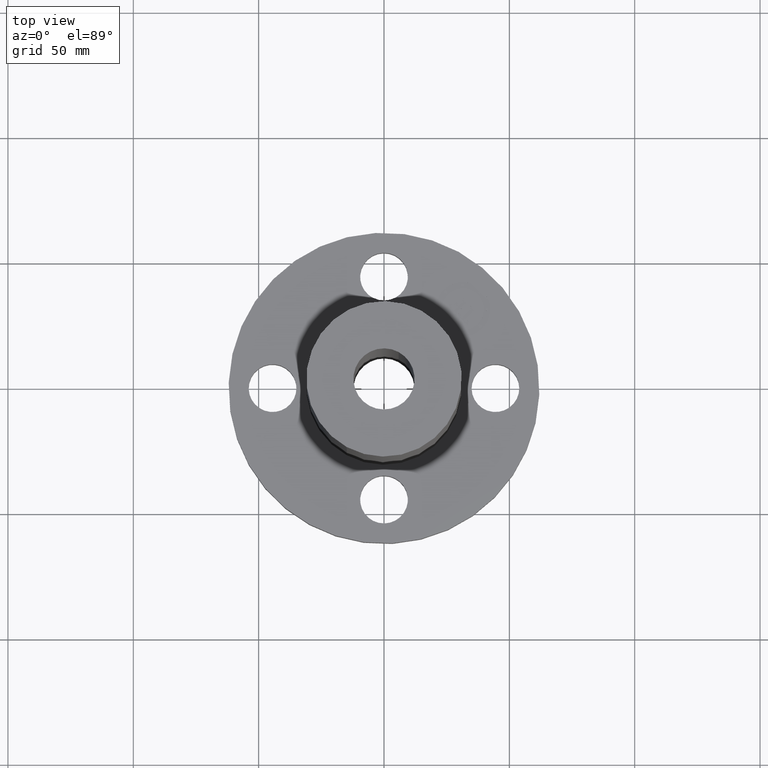
[diagram: clean part render]
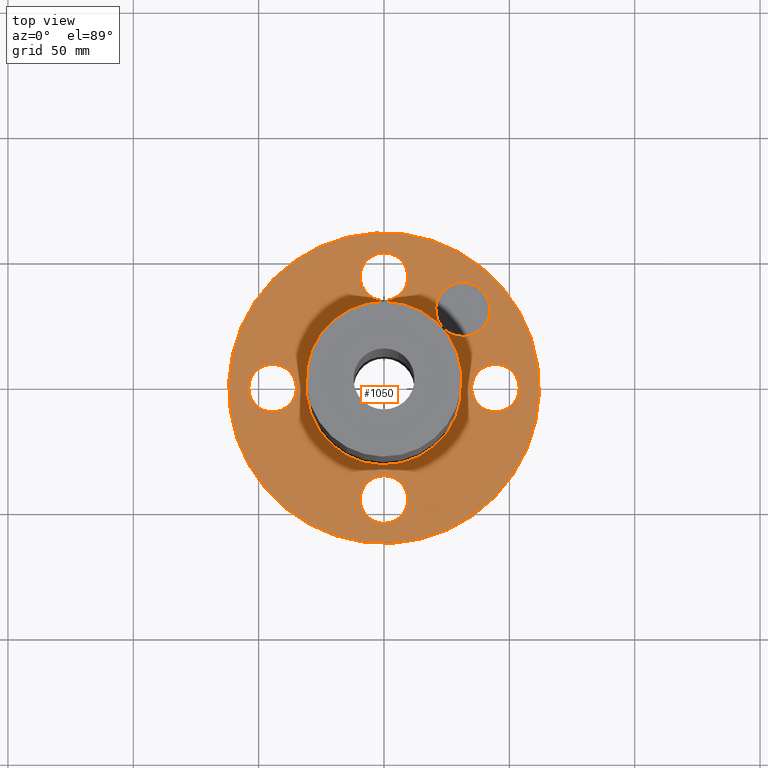
[diagram: same view with one face highlighted and labeled with its STEP entity id]
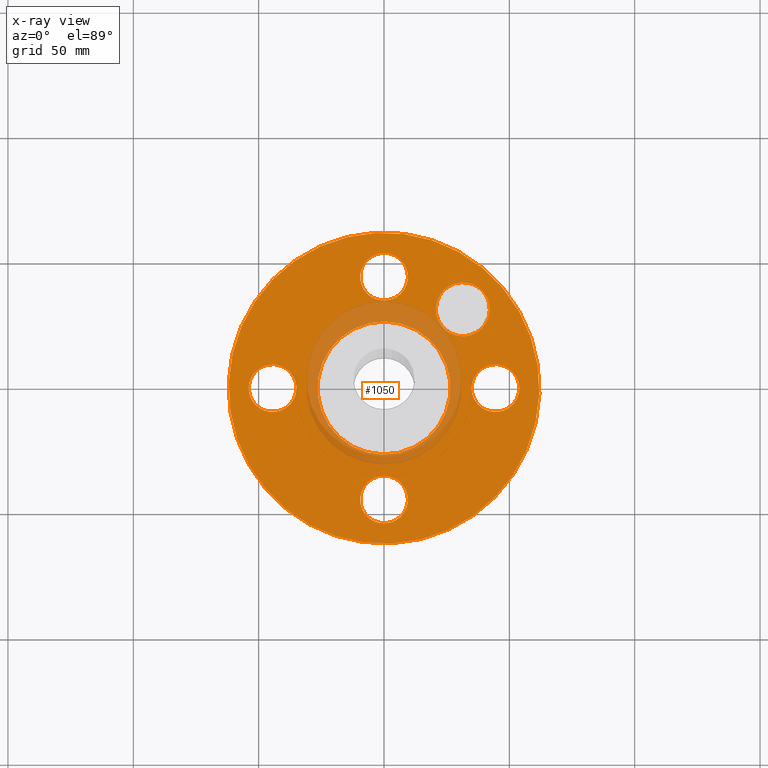
[diagram: x-ray of the same camera — body ghosted, the highlighted face saturated]
A machine part, top view. The second image highlights one B-rep face of the part: STEP entity #1050.
The next image is the same camera in x-ray: the body ghosted, the highlighted face saturated — about 12% of this face is hidden behind the body in this view.
In plain terms, the highlighted planar face has unit normal (0, 0, -1).
Its self-contained STEP definition (entity closure, byte-faithful):
#51=AXIS2_PLACEMENT_3D('Circle Axis2P3D',#49,#50,$) ;
#238=AXIS2_PLACEMENT_3D('Circle Axis2P3D',#236,#237,$) ;
#263=AXIS2_PLACEMENT_3D('Circle Axis2P3D',#261,#262,$) ;
#282=AXIS2_PLACEMENT_3D('Circle Axis2P3D',#280,#281,$) ;
#299=AXIS2_PLACEMENT_3D('Circle Axis2P3D',#297,#298,$) ;
#334=AXIS2_PLACEMENT_3D('Circle Axis2P3D',#332,#333,$) ;
#885=AXIS2_PLACEMENT_3D('Circle Axis2P3D',#883,#884,$) ;
#904=AXIS2_PLACEMENT_3D('Circle Axis2P3D',#902,#903,$) ;
#929=AXIS2_PLACEMENT_3D('Circle Axis2P3D',#927,#928,$) ;
#948=AXIS2_PLACEMENT_3D('Circle Axis2P3D',#946,#947,$) ;
#973=AXIS2_PLACEMENT_3D('Circle Axis2P3D',#971,#972,$) ;
#992=AXIS2_PLACEMENT_3D('Circle Axis2P3D',#990,#991,$) ;
#1006=AXIS2_PLACEMENT_3D('Plane Axis2P3D',#1003,#1004,#1005) ;
#1034=AXIS2_PLACEMENT_3D('Circle Axis2P3D',#1032,#1033,$) ;
#1043=AXIS2_PLACEMENT_3D('Circle Axis2P3D',#1041,#1042,$) ;
#44=CARTESIAN_POINT('Vertex',(1.4209065393,-0.179784576977,0.627500000003)) ;
#49=CARTESIAN_POINT('Axis2P3D Location',(1.75000000001,0.,0.627500000003)) ;
#53=CARTESIAN_POINT('Vertex',(2.07909346072,0.179784576977,0.627500000003)) ;
#236=CARTESIAN_POINT('Axis2P3D Location',(1.75000000001,0.,0.627500000003)) ;
#258=CARTESIAN_POINT('Vertex',(-1.1697983142,-2.14130145102,0.627500000003)) ;
#261=CARTESIAN_POINT('Axis2P3D Location',(0.,0.,0.627500000003)) ;
#265=CARTESIAN_POINT('Vertex',(1.1697983142,2.14130145102,0.627500000003)) ;
#280=CARTESIAN_POINT('Axis2P3D Location',(0.,0.,0.627500000003)) ;
#297=CARTESIAN_POINT('Axis2P3D Location',(0.,0.,0.627500000003)) ;
#301=CARTESIAN_POINT('Vertex',(0.500999687843,0.917073777179,0.627500000003)) ;
#303=CARTESIAN_POINT('Vertex',(-0.500999687843,-0.917073777179,0.627500000003)) ;
#332=CARTESIAN_POINT('Axis2P3D Location',(0.,0.,0.627500000003)) ;
#880=CARTESIAN_POINT('Vertex',(-0.179784576977,-1.4209065393,0.627500000003)) ;
#883=CARTESIAN_POINT('Axis2P3D Location',(1.07156594926E-016,-1.75000000001,0.627500000003)) ;
#887=CARTESIAN_POINT('Vertex',(0.179784576977,-2.07909346072,0.627500000003)) ;
#902=CARTESIAN_POINT('Axis2P3D Location',(1.07156594926E-016,-1.75000000001,0.627500000003)) ;
#924=CARTESIAN_POINT('Vertex',(-1.4209065393,0.179784576977,0.627500000003)) ;
#927=CARTESIAN_POINT('Axis2P3D Location',(-1.75000000001,-2.14313189852E-016,0.627500000003)) ;
#931=CARTESIAN_POINT('Vertex',(-2.07909346072,-0.179784576977,0.627500000003)) ;
#946=CARTESIAN_POINT('Axis2P3D Location',(-1.75000000001,-2.14313189852E-016,0.627500000003)) ;
#968=CARTESIAN_POINT('Vertex',(0.179784576977,1.4209065393,0.627500000003)) ;
#971=CARTESIAN_POINT('Axis2P3D Location',(-3.21469784777E-016,1.75000000001,0.627500000003)) ;
#975=CARTESIAN_POINT('Vertex',(-0.179784576977,2.07909346072,0.627500000003)) ;
#990=CARTESIAN_POINT('Axis2P3D Location',(-3.21469784777E-016,1.75000000001,0.627500000003)) ;
#1003=CARTESIAN_POINT('Axis2P3D Location',(0.,2.44000000001,0.627500000003)) ;
#1032=CARTESIAN_POINT('Axis2P3D Location',(1.23743686708,1.23743686708,0.627500000003)) ;
#1036=CARTESIAN_POINT('Vertex',(1.53795724608,0.936916488081,0.627500000003)) ;
#1038=CARTESIAN_POINT('Vertex',(0.936916488081,1.53795724608,0.627500000003)) ;
#1041=CARTESIAN_POINT('Axis2P3D Location',(1.23743686708,1.23743686708,0.627500000003)) ;
#50=DIRECTION('Axis2P3D Direction',(0.,-0.,0.0393700787402)) ;
#237=DIRECTION('Axis2P3D Direction',(0.,-0.,0.0393700787402)) ;
#262=DIRECTION('Axis2P3D Direction',(0.,0.,-0.0393700787402)) ;
#281=DIRECTION('Axis2P3D Direction',(0.,0.,-0.0393700787402)) ;
#298=DIRECTION('Axis2P3D Direction',(0.,0.,-0.0393700787402)) ;
#333=DIRECTION('Axis2P3D Direction',(0.,0.,-0.0393700787402)) ;
#884=DIRECTION('Axis2P3D Direction',(-0.,0.,0.0393700787402)) ;
#903=DIRECTION('Axis2P3D Direction',(-0.,0.,0.0393700787402)) ;
#928=DIRECTION('Axis2P3D Direction',(0.,0.,0.0393700787402)) ;
#947=DIRECTION('Axis2P3D Direction',(0.,0.,0.0393700787402)) ;
#972=DIRECTION('Axis2P3D Direction',(0.,0.,0.0393700787402)) ;
#991=DIRECTION('Axis2P3D Direction',(0.,0.,0.0393700787402)) ;
#1004=DIRECTION('Axis2P3D Direction',(0.,0.,-0.0393700787402)) ;
#1005=DIRECTION('Axis2P3D XDirection',(0.0393700787402,0.,0.)) ;
#1033=DIRECTION('Axis2P3D Direction',(0.,0.,-0.0393700787402)) ;
#1042=DIRECTION('Axis2P3D Direction',(0.,0.,-0.0393700787402)) ;
#1009=ORIENTED_EDGE('',*,*,#284,.F.) ;
#1010=ORIENTED_EDGE('',*,*,#267,.F.) ;
#1013=ORIENTED_EDGE('',*,*,#55,.T.) ;
#1014=ORIENTED_EDGE('',*,*,#240,.T.) ;
#1017=ORIENTED_EDGE('',*,*,#336,.T.) ;
#1018=ORIENTED_EDGE('',*,*,#305,.T.) ;
#1021=ORIENTED_EDGE('',*,*,#906,.T.) ;
#1022=ORIENTED_EDGE('',*,*,#889,.T.) ;
#1025=ORIENTED_EDGE('',*,*,#950,.T.) ;
#1026=ORIENTED_EDGE('',*,*,#933,.T.) ;
#1029=ORIENTED_EDGE('',*,*,#994,.T.) ;
#1030=ORIENTED_EDGE('',*,*,#977,.T.) ;
#1047=ORIENTED_EDGE('',*,*,#1040,.F.) ;
#1048=ORIENTED_EDGE('',*,*,#1045,.F.) ;
#1015=FACE_BOUND('',#1012,.T.) ;
#1019=FACE_BOUND('',#1016,.T.) ;
#1023=FACE_BOUND('',#1020,.T.) ;
#1027=FACE_BOUND('',#1024,.T.) ;
#1031=FACE_BOUND('',#1028,.T.) ;
#1049=FACE_BOUND('',#1046,.T.) ;
#1050=ADVANCED_FACE('PartBody',(#1011,#1015,#1019,#1023,#1027,#1031,#1049),#1007,.F.) ;
#52=CIRCLE('generated circle',#51,0.375000000001) ;
#239=CIRCLE('generated circle',#238,0.375000000001) ;
#264=CIRCLE('generated circle',#263,2.44000000001) ;
#283=CIRCLE('generated circle',#282,2.44000000001) ;
#300=CIRCLE('generated circle',#299,1.045) ;
#335=CIRCLE('generated circle',#334,1.045) ;
#886=CIRCLE('generated circle',#885,0.375000000001) ;
#905=CIRCLE('generated circle',#904,0.375000000001) ;
#930=CIRCLE('generated circle',#929,0.375000000002) ;
#949=CIRCLE('generated circle',#948,0.375000000002) ;
#974=CIRCLE('generated circle',#973,0.375000000001) ;
#993=CIRCLE('generated circle',#992,0.375000000001) ;
#1035=CIRCLE('generated circle',#1034,0.424999995752) ;
#1044=CIRCLE('generated circle',#1043,0.424999995752) ;
#55=EDGE_CURVE('',#54,#45,#52,.F.) ;
#240=EDGE_CURVE('',#45,#54,#239,.F.) ;
#267=EDGE_CURVE('',#259,#266,#264,.T.) ;
#284=EDGE_CURVE('',#266,#259,#283,.T.) ;
#305=EDGE_CURVE('',#302,#304,#300,.T.) ;
#336=EDGE_CURVE('',#304,#302,#335,.T.) ;
#889=EDGE_CURVE('',#888,#881,#886,.F.) ;
#906=EDGE_CURVE('',#881,#888,#905,.F.) ;
#933=EDGE_CURVE('',#932,#925,#930,.F.) ;
#950=EDGE_CURVE('',#925,#932,#949,.F.) ;
#977=EDGE_CURVE('',#976,#969,#974,.F.) ;
#994=EDGE_CURVE('',#969,#976,#993,.F.) ;
#1040=EDGE_CURVE('',#1037,#1039,#1035,.F.) ;
#1045=EDGE_CURVE('',#1039,#1037,#1044,.F.) ;
#1008=EDGE_LOOP('',(#1009,#1010)) ;
#1012=EDGE_LOOP('',(#1013,#1014)) ;
#1016=EDGE_LOOP('',(#1017,#1018)) ;
#1020=EDGE_LOOP('',(#1021,#1022)) ;
#1024=EDGE_LOOP('',(#1025,#1026)) ;
#1028=EDGE_LOOP('',(#1029,#1030)) ;
#1046=EDGE_LOOP('',(#1047,#1048)) ;
#1011=FACE_OUTER_BOUND('',#1008,.T.) ;
#1007=PLANE('',#1006) ;
#45=VERTEX_POINT('',#44) ;
#54=VERTEX_POINT('',#53) ;
#259=VERTEX_POINT('',#258) ;
#266=VERTEX_POINT('',#265) ;
#302=VERTEX_POINT('',#301) ;
#304=VERTEX_POINT('',#303) ;
#881=VERTEX_POINT('',#880) ;
#888=VERTEX_POINT('',#887) ;
#925=VERTEX_POINT('',#924) ;
#932=VERTEX_POINT('',#931) ;
#969=VERTEX_POINT('',#968) ;
#976=VERTEX_POINT('',#975) ;
#1037=VERTEX_POINT('',#1036) ;
#1039=VERTEX_POINT('',#1038) ;